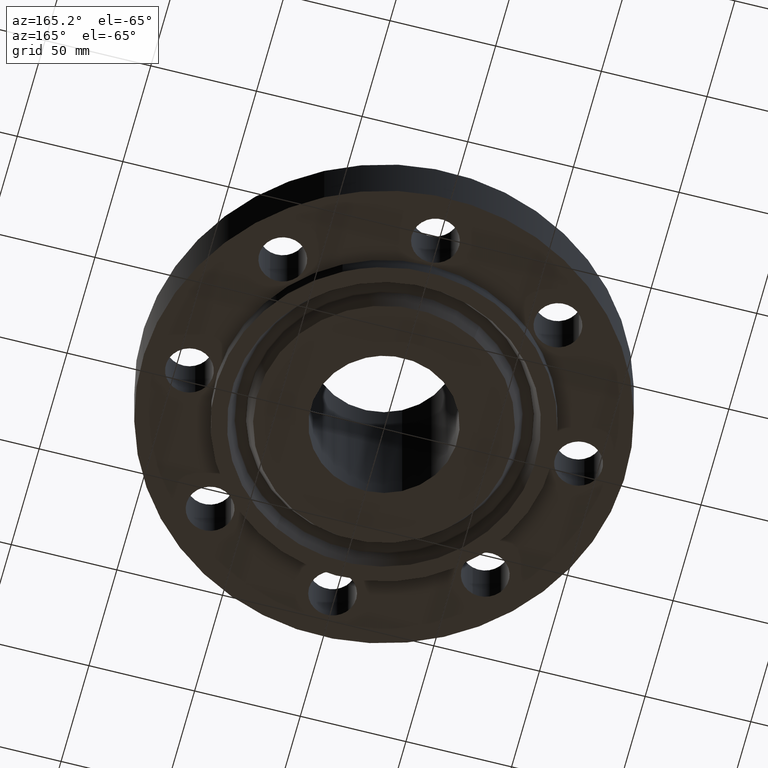
[diagram: clean part render]
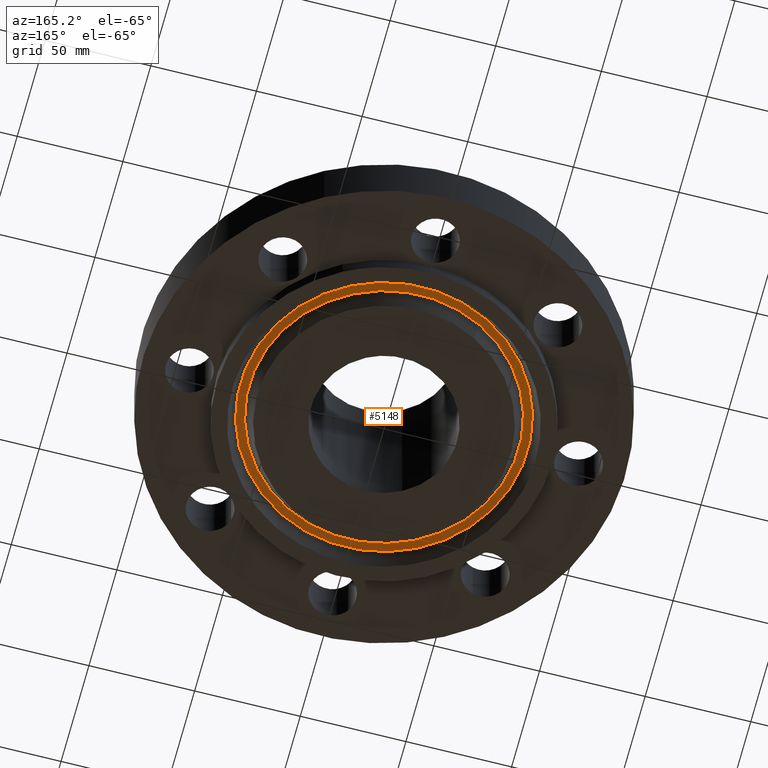
[diagram: same view with one face highlighted and labeled with its STEP entity id]
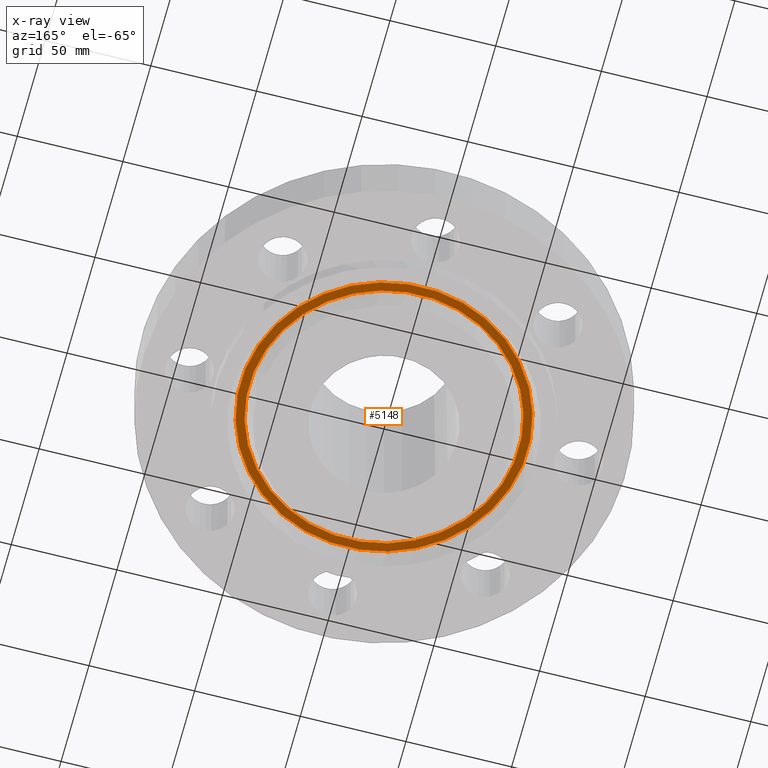
[diagram: x-ray of the same camera — body ghosted, the highlighted face saturated]
A machine part, auxiliary view. The second image highlights one B-rep face of the part: STEP entity #5148.
The next image is the same camera in x-ray: the body ghosted, the highlighted face saturated — about 0% of this face is hidden behind the body in this view.
In plain terms, the highlighted planar face has unit normal (0, 0, -1).
Its self-contained STEP definition (entity closure, byte-faithful):
#139=AXIS2_PLACEMENT_3D('Plane Axis2P3D',#136,#137,#138) ;
#2108=AXIS2_PLACEMENT_3D('Circle Axis2P3D',#2106,#2107,$) ;
#2139=AXIS2_PLACEMENT_3D('Circle Axis2P3D',#2137,#2138,$) ;
#5132=AXIS2_PLACEMENT_3D('Circle Axis2P3D',#5130,#5131,$) ;
#5141=AXIS2_PLACEMENT_3D('Circle Axis2P3D',#5139,#5140,$) ;
#136=CARTESIAN_POINT('Axis2P3D Location',(0.,3.12500000001,0.)) ;
#2103=CARTESIAN_POINT('Vertex',(-1.28252129276,2.34763947924,0.)) ;
#2106=CARTESIAN_POINT('Axis2P3D Location',(0.,0.,0.)) ;
#2110=CARTESIAN_POINT('Vertex',(1.28252129276,-2.34763947924,0.)) ;
#2137=CARTESIAN_POINT('Axis2P3D Location',(0.,0.,0.)) ;
#5130=CARTESIAN_POINT('Axis2P3D Location',(-1.28116589953E-011,-3.36651791308E-011,0.)) ;
#5134=CARTESIAN_POINT('Vertex',(1.20473840149,-2.2052588519,0.)) ;
#5136=CARTESIAN_POINT('Vertex',(-1.20473840149,2.20525885185,0.)) ;
#5139=CARTESIAN_POINT('Axis2P3D Location',(1.28116589953E-011,-1.96669277539E-011,0.)) ;
#137=DIRECTION('Axis2P3D Direction',(0.,0.,-0.0393700787402)) ;
#138=DIRECTION('Axis2P3D XDirection',(0.0393700787402,0.,0.)) ;
#2107=DIRECTION('Axis2P3D Direction',(0.,0.,0.0393700787402)) ;
#2138=DIRECTION('Axis2P3D Direction',(0.,0.,0.0393700787402)) ;
#5131=DIRECTION('Axis2P3D Direction',(0.,0.,-0.0393700787402)) ;
#5140=DIRECTION('Axis2P3D Direction',(0.,0.,-0.0393700787402)) ;
#5127=ORIENTED_EDGE('',*,*,#2112,.F.) ;
#5128=ORIENTED_EDGE('',*,*,#2141,.F.) ;
#5145=ORIENTED_EDGE('',*,*,#5138,.T.) ;
#5146=ORIENTED_EDGE('',*,*,#5143,.T.) ;
#5147=FACE_BOUND('',#5144,.T.) ;
#5148=ADVANCED_FACE('PartBody',(#5129,#5147),#140,.T.) ;
#2109=CIRCLE('generated circle',#2108,2.67512093014) ;
#2140=CIRCLE('generated circle',#2139,2.67512093014) ;
#5133=CIRCLE('generated circle',#5132,2.51287906988) ;
#5142=CIRCLE('generated circle',#5141,2.51287906988) ;
#2112=EDGE_CURVE('',#2104,#2111,#2109,.T.) ;
#2141=EDGE_CURVE('',#2111,#2104,#2140,.T.) ;
#5138=EDGE_CURVE('',#5135,#5137,#5133,.F.) ;
#5143=EDGE_CURVE('',#5137,#5135,#5142,.F.) ;
#5126=EDGE_LOOP('',(#5127,#5128)) ;
#5144=EDGE_LOOP('',(#5145,#5146)) ;
#5129=FACE_OUTER_BOUND('',#5126,.T.) ;
#140=PLANE('',#139) ;
#2104=VERTEX_POINT('',#2103) ;
#2111=VERTEX_POINT('',#2110) ;
#5135=VERTEX_POINT('',#5134) ;
#5137=VERTEX_POINT('',#5136) ;